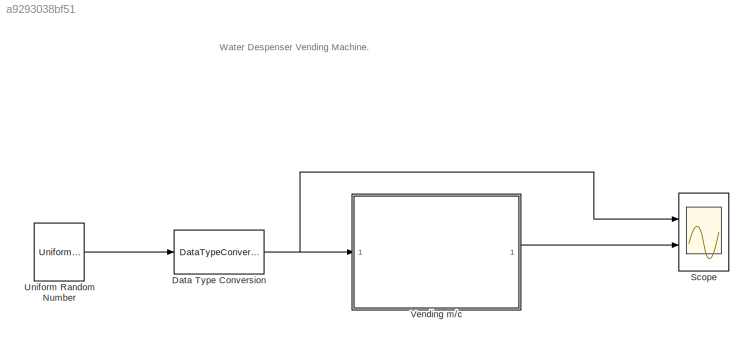
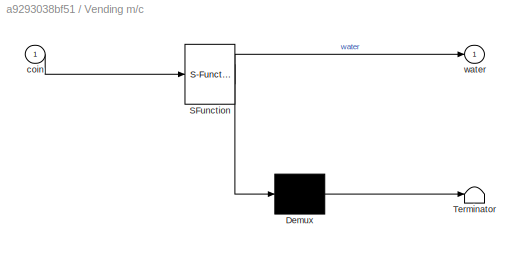
MODEL slx_a9293038bf51
KIND model
CONFIG AbsTol = auto
CONFIG EnableMultiTasking = off
CONFIG FixedStep = auto
CONFIG MaxStep = auto
CONFIG MinStep = auto
CONFIG RelTol = 1e-3
CONFIG SampleTimeConstraint = Unconstrained
CONFIG SolverName = VariableStepAuto
CONFIG StartTime = 0.0
CONFIG StopTime = 10
BLOCK [DataTypeConversion] Data Type Conversion
  OutDataTypeStr = int8
  RndMeth = Nearest
  SaturateOnIntegerOverflow = off
BLOCK [Scope] Scope
  Floating = off
  NumInputPorts = 2
  Ports = [2]
  ScopeSpecificationString = Simulink.scopes.TimeScopeBlockCfg('CurrentConfiguration', extmgr.ConfigurationSet(extmgr.Configuration('Core','General UI',true),extmgr.Configuration('Core','Source UI',true),extmgr.Configuration('Sources','WiredSimulink',true),extmgr.Configuration('Visuals','Time Domain',true,'SerializedDisplays',{struct('MinYLimReal','-1.25','MaxYLimReal','1.25','YLabelReal','','MinYLimMag','0.00000','MaxYLimMag...<+1361ch>
BLOCK [UniformRandomNumber] Uniform Random Number
  SampleTime = 0.1
BLOCK [SubSystem] Vending m//c
  ErrorFcn = Stateflow.Translate.translate
  PermitHierarchicalResolution = ExplicitOnly
  Ports = [1, 1]
  RequestExecContextInheritance = off
  SFBlockType = Chart
  TreatAsAtomicUnit = on
BLOCK [Demux] Vending m//c/ Demux 
  Outputs = 1
  Ports = [1, 1]
BLOCK [S-Function] Vending m//c/ SFunction 
  EnableBusSupport = on
  FunctionName = sf_sfun
  PortCounts = [1 2]
  Ports = [1, 2]
  SFcnIsStateOwnerBlock = off
  SFunctionDeploymentMode = off
  Tag = Stateflow S-Function 1
BLOCK [Terminator] Vending m//c/ Terminator 
BLOCK [Inport] Vending m//c/coin
BLOCK [Outport] Vending m//c/water
ANNOTATION (root): Water Despenser Vending Machine.
NET Data Type Conversion:1 -> Scope:1, Vending m//c:1
LINE Uniform Random Number:1 -> Data Type Conversion:1
LINE Vending m//c:1 -> Scope:2
note: NET lines group one-source signal fan-out (src -> all destinations, sorted); 1:1 wires keep LINE
CHART Vending m//c states=3 transitions=7
  STATE_LABEL 'GCoins'
  STATE_LABEL 'Coins5'
  STATE_LABEL 'Coins10'
CHART  states=0 transitions=0
